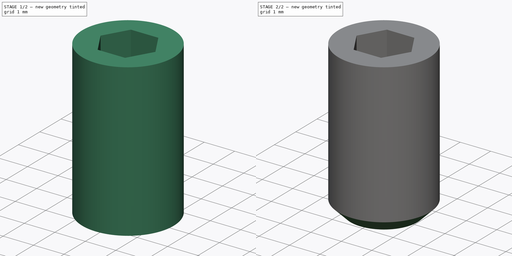
[diagram: build sequence overview — one tinted view per stage of 2, left to right]
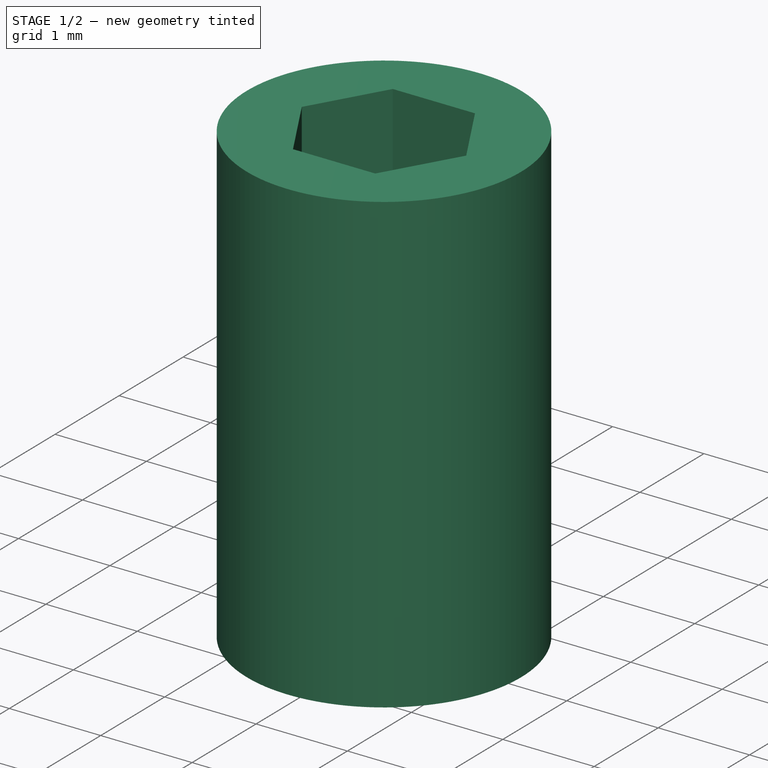
[diagram: stage 1 of 2 — iso view after this stage's code; geometry added in this stage tinted green]
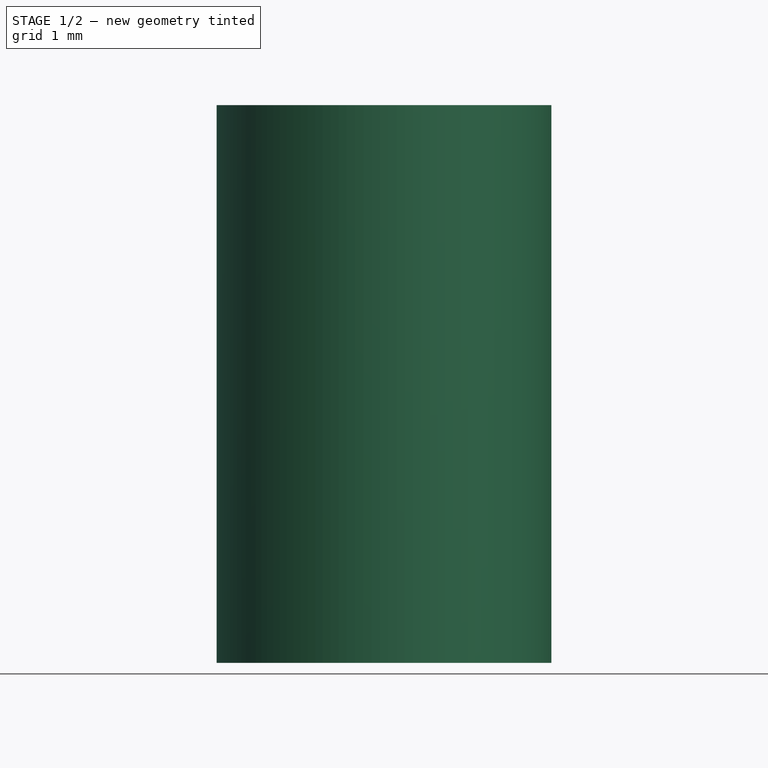
[diagram: stage 1 of 2 — front view after this stage's code; geometry added in this stage tinted green]
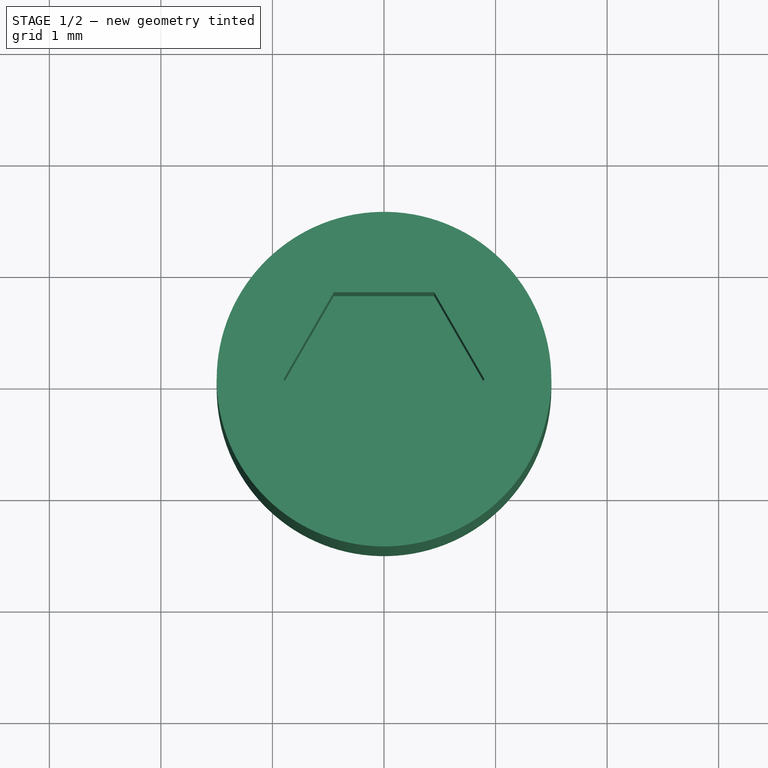
[diagram: stage 1 of 2 — top view after this stage's code; geometry added in this stage tinted green]
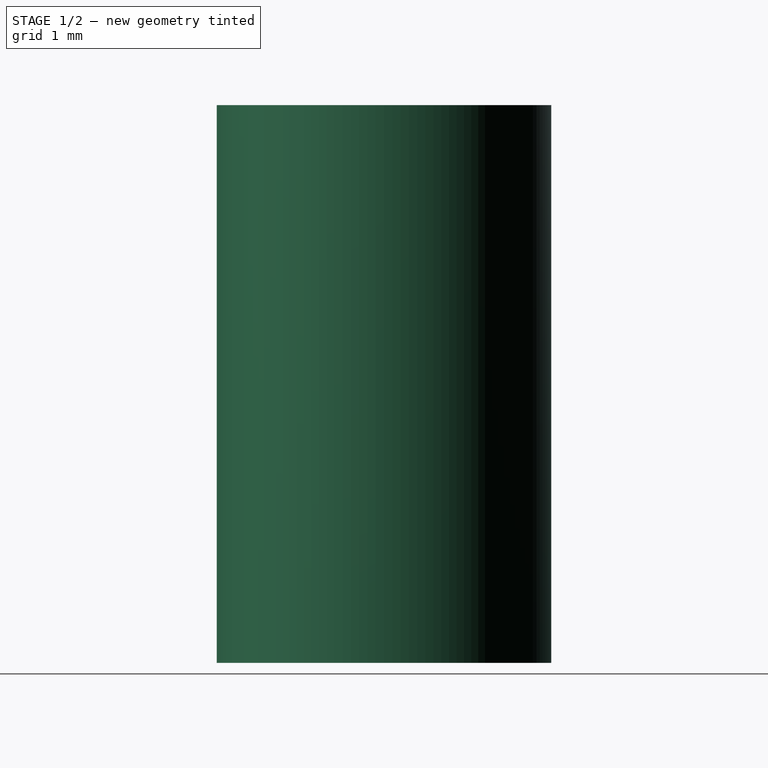
[diagram: stage 1 of 2 — right view after this stage's code; geometry added in this stage tinted green]
FCSTD DOCUMENT  (FreeCAD 0.15R4671 (Git))
Label: DIN913_Dowel_M3x5
License: All rights reserved
LicenseURL: http://es.wikipedia.org/wiki/Todos_los_derechos_reservados
objects: Sketcher::SketchObject×2, PartDesign::Pad×1, PartDesign::Pocket×1, PartDesign::Chamfer×1
note: 7 computed .brp shape members not serialized (recipe doc carries the construction recipe); baked Part::Feature solids carry a one-line shape summary decoded from their .brp

FEATURE [Sketcher::SketchObject] Sketch
  sketch-geometry (1):
    g0: Circle CenterX=0 CenterY=0 CenterZ=0 NormalX=0 NormalY=0 NormalZ=1 Radius=1.5
  constraints (2):
    c: Coincident(g0,g-1)
    c: Radius(g0) = 1.5
FEATURE [PartDesign::Pad] Pad
  Length = 5
  Length2 = 100
  Sketch = -> Sketch
  Type = 0
FEATURE [Sketcher::SketchObject] Sketch001
  Placement = pos=(0,0,5) rot=(0,0,1;0rad)
  Support = -> Pad [Face3]
  sketch-geometry (7):
    g0: LineSegment StartX=0.9 StartY=0 StartZ=0 EndX=0.45 EndY=0.779423 EndZ=0
    g1: LineSegment StartX=0.45 StartY=0.779423 StartZ=0 EndX=-0.45 EndY=0.779423 EndZ=0
    g2: LineSegment StartX=-0.45 StartY=0.779423 StartZ=0 EndX=-0.9 EndY=0 EndZ=0
    g3: LineSegment StartX=-0.9 StartY=0 StartZ=0 EndX=-0.45 EndY=-0.779423 EndZ=0
    g4: LineSegment StartX=-0.45 StartY=-0.779423 StartZ=0 EndX=0.45 EndY=-0.779423 EndZ=0
    g5: LineSegment StartX=0.45 StartY=-0.779423 StartZ=0 EndX=0.9 EndY=0 EndZ=0
    g6: Circle [constr] CenterX=0 CenterY=0 CenterZ=0 NormalX=0 NormalY=0 NormalZ=1 Radius=0.9
  constraints (17):
    c: Coincident(g0,g1)
    c: Coincident(g1,g2)
    c: Coincident(g2,g3)
    c: Coincident(g3,g4)
    c: Coincident(g4,g5)
    c: Coincident(g5,g0)
    c: Equal(g0, g1-g5) x5
    c: PointOnObject(g0,g6)
    c: PointOnObject(g1,g6)
    c: PointOnObject(g2,g6)
    c: PointOnObject(g3,g6)
    c: PointOnObject(g4,g6)
    c: PointOnObject(g5,g6)
    c: Coincident(g3,g-1)
    c: Horizontal(g4)
    c: Distance(g0,g3) = 1.8
    c: Coincident(g6,g-1)
FEATURE [PartDesign::Pocket] Pocket
  Length = 2
  Sketch = -> Sketch001
  Type = 0
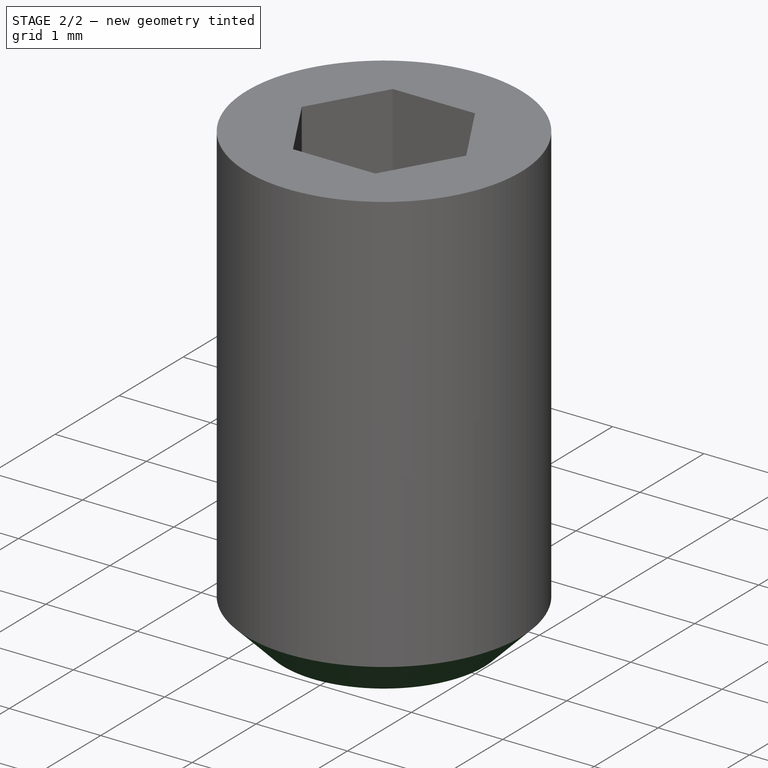
[diagram: stage 2 of 2 — iso view after this stage's code; geometry added in this stage tinted green]
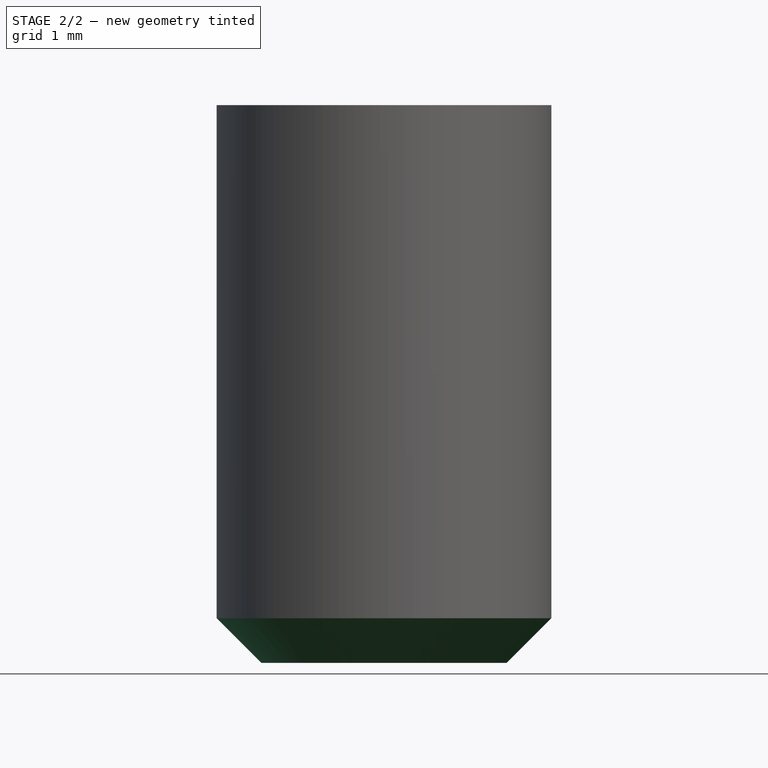
[diagram: stage 2 of 2 — front view after this stage's code; geometry added in this stage tinted green]
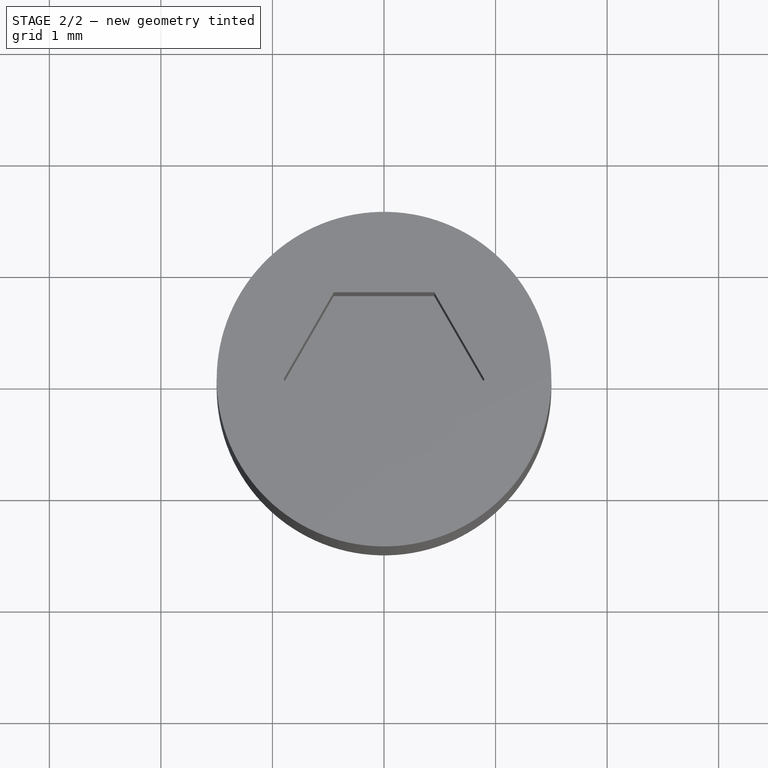
[diagram: stage 2 of 2 — top view after this stage's code; geometry added in this stage tinted green]
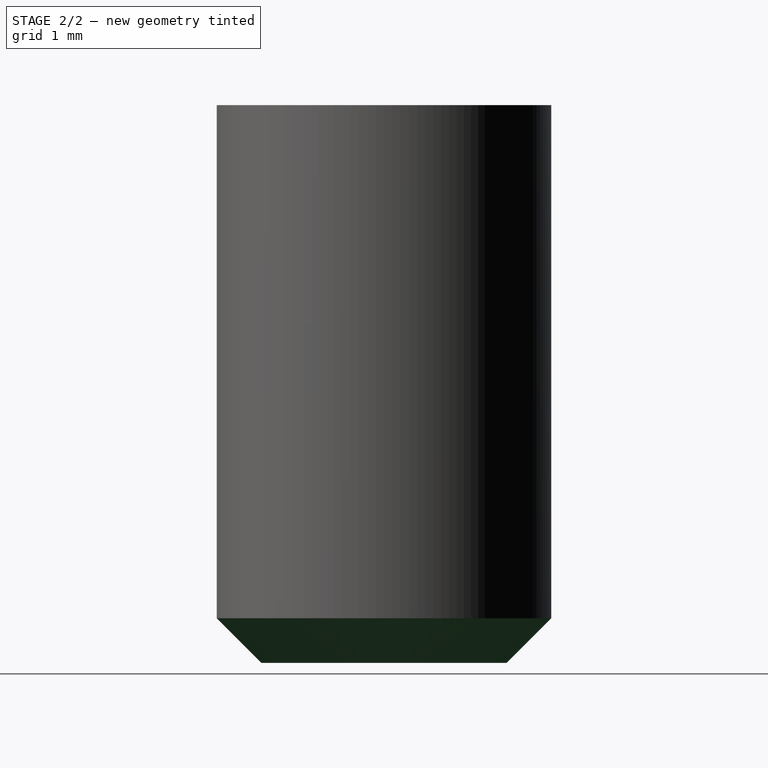
[diagram: stage 2 of 2 — right view after this stage's code; geometry added in this stage tinted green]
FEATURE [PartDesign::Chamfer] Chamfer
  Base = -> Pocket [Edge2]
  Size = 0.4
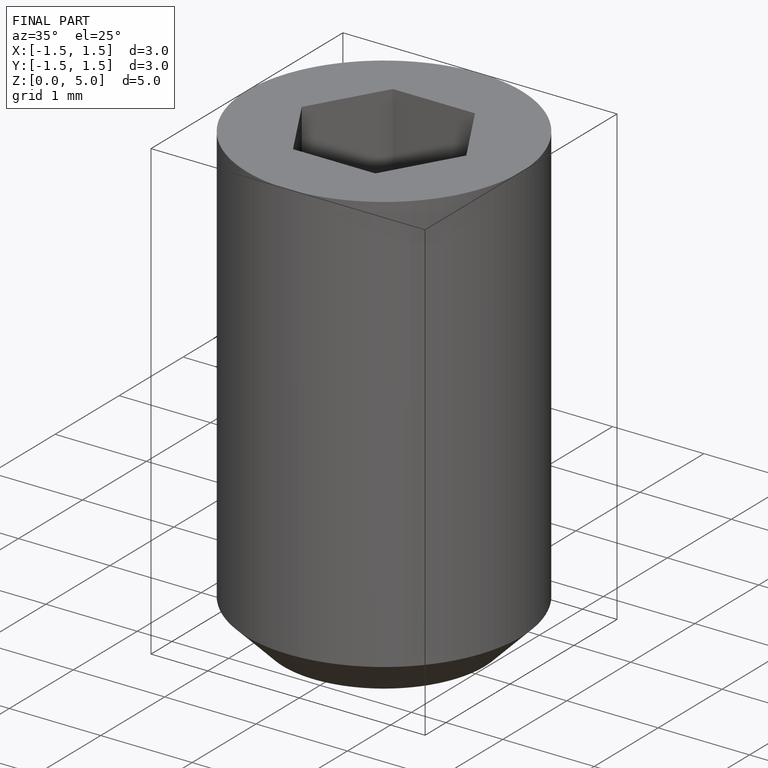
[diagram: finished part — iso view with bounding-box wireframe]
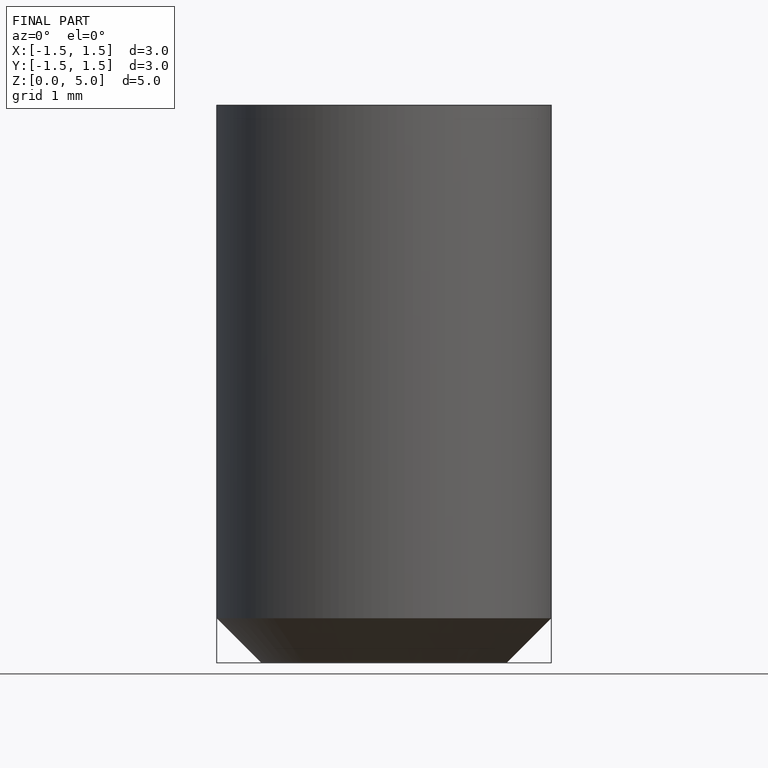
[diagram: finished part — front view with bounding-box wireframe]
